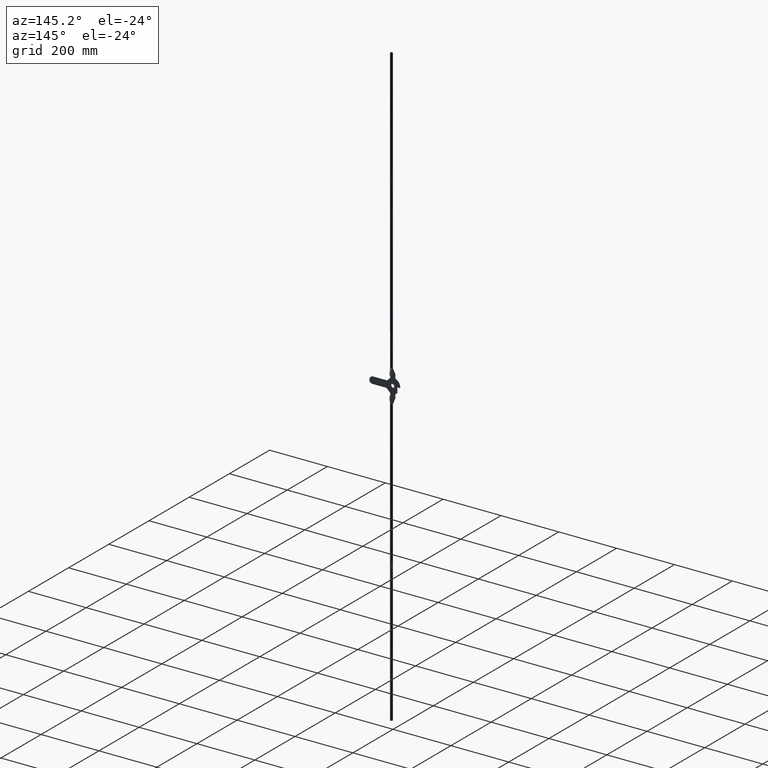
[diagram: clean part render]
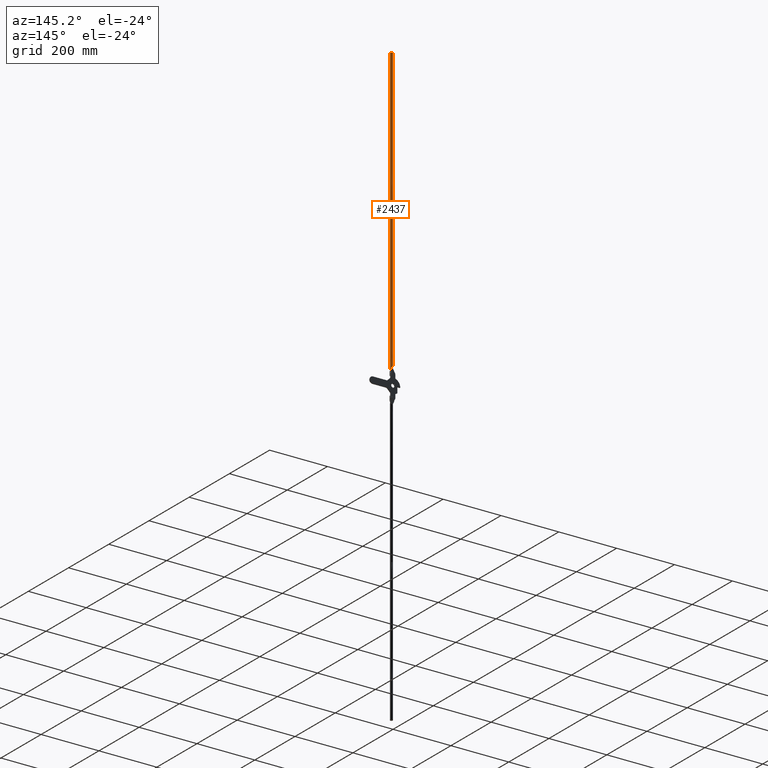
[diagram: same view with one face highlighted and labeled with its STEP entity id]
A machine part, auxiliary view. The second image highlights one B-rep face of the part: STEP entity #2437.
In plain terms, the highlighted face is a freeform B-spline surface patch.
Its self-contained STEP definition (entity closure, byte-faithful):
#2057=CARTESIAN_POINT('',(-5.637851E-014,-3.200000000000001,1037.003999999999900));
#2058=VERTEX_POINT('',#2057);
#2059=CARTESIAN_POINT('',(-4.486127999967517,-7.346934045952233,1037.003999999999900));
#2060=VERTEX_POINT('',#2059);
#2061=CARTESIAN_POINT('',(-5.637851E-014,-3.200000000000001,1037.003999999999900));
#2062=CARTESIAN_POINT('',(-4.159757190815893,-3.200000000000001,1037.004000000000100));
#2063=CARTESIAN_POINT('',(-4.486127999967549,-7.346934045952231,1037.003999999999900));
#2071=(BOUNDED_CURVE()B_SPLINE_CURVE(2,(#2061,#2062,#2063),.UNSPECIFIED.,.F.,.U.)B_SPLINE_CURVE_WITH_KNOTS((3,3),(0.0,0.236331299743477),.UNSPECIFIED.)CURVE()GEOMETRIC_REPRESENTATION_ITEM()RATIONAL_B_SPLINE_CURVE((1.0,0.723120659647065,0.969723354315934))REPRESENTATION_ITEM(''));
#2072=EDGE_CURVE('',#2058,#2060,#2071,.T.);
#2091=CARTESIAN_POINT('',(4.486127999967467,-8.053065954047764,1037.003999999999900));
#2092=VERTEX_POINT('',#2091);
#2106=CARTESIAN_POINT('',(4.486127999967437,-8.053065954047760,1037.004000000000100));
#2107=CARTESIAN_POINT('',(4.499999999999943,-7.876805493224742,1037.004000000000400));
#2108=CARTESIAN_POINT('',(4.499999999999943,-7.700000000000000,1037.003999999999900));
#2109=CARTESIAN_POINT('',(4.499999999999942,-3.200000000000000,1037.004000000000100));
#2110=CARTESIAN_POINT('',(-5.637851E-014,-3.200000000000001,1037.003999999999900));
#2118=(BOUNDED_CURVE()B_SPLINE_CURVE(2,(#2106,#2107,#2108,#2109,#2110),.UNSPECIFIED.,.F.,.U.)B_SPLINE_CURVE_WITH_KNOTS((3,2,3),(0.736331299743477,0.750000000000000,1.0),.UNSPECIFIED.)CURVE()GEOMETRIC_REPRESENTATION_ITEM()RATIONAL_B_SPLINE_CURVE((0.969723354315935,0.983986121539483,1.0,0.707106781186547,1.0))REPRESENTATION_ITEM(''));
#2119=EDGE_CURVE('',#2092,#2058,#2118,.T.);
#2306=CARTESIAN_POINT('',(-4.486128001799075,-7.346934069224758,1061.638195072248900));
#2307=CARTESIAN_POINT('',(-4.133062071023832,-2.860806067425679,1061.638195072248900));
#2308=CARTESIAN_POINT('',(0.353065930775247,-3.213871998200921,1061.638195072248900));
#2309=CARTESIAN_POINT('',(4.839193932574327,-3.566937928976165,1061.638195072248900));
#2310=CARTESIAN_POINT('',(4.486128001799083,-8.053065930775244,1061.638195072248900));
#2311=CARTESIAN_POINT('',(-4.486128001799016,-7.346934069224758,26.386147160999030));
#2312=CARTESIAN_POINT('',(-4.133062071023774,-2.860806067425679,26.386147160999023));
#2313=CARTESIAN_POINT('',(0.353065930775307,-3.213871998200921,26.386147160999030));
#2314=CARTESIAN_POINT('',(4.839193932574385,-3.566937928976165,26.386147160999023));
#2315=CARTESIAN_POINT('',(4.486128001799142,-8.053065930775244,26.386147160999030));
#2323=(BOUNDED_SURFACE()B_SPLINE_SURFACE(2,1,((#2306,#2311),(#2307,#2312),(#2308,#2313),(#2309,#2314),(#2310,#2315)),.UNSPECIFIED.,.F.,.F.,.U.)B_SPLINE_SURFACE_WITH_KNOTS((3,2,3),(2,2),(0.0,7.455844122715710,14.911688245431421),(0.0,1035.252047911250000),.UNSPECIFIED.)GEOMETRIC_REPRESENTATION_ITEM()RATIONAL_B_SPLINE_SURFACE(((1.0,1.0),(0.707106781186548,0.707106781186548),(1.0,1.0),(0.707106781186548,0.707106781186548),(1.0,1.0)))REPRESENTATION_ITEM('')SURFACE());
#2324=CARTESIAN_POINT('',(0.000002899509762,-3.199999999999905,59.999996617238700));
#2325=VERTEX_POINT('',#2324);
#2326=CARTESIAN_POINT('',(-4.486130706923814,-7.346934913627599,51.649709082939012));
#2327=VERTEX_POINT('',#2326);
#2328=CARTESIAN_POINT('',(0.000002899509762,-3.199999999999905,59.999996617238700));
#2329=CARTESIAN_POINT('',(-0.164815960589802,-3.200000013216943,59.807707969231771));
#2330=CARTESIAN_POINT('',(-0.325337227543509,-3.209016996732300,59.612332598107763));
#2331=CARTESIAN_POINT('',(-0.560079880868371,-3.234297299991398,59.314888189996232));
#2332=CARTESIAN_POINT('',(-0.637226619064104,-3.244683792576500,59.215124059827140));
#2333=CARTESIAN_POINT('',(-0.788964632619064,-3.269036885587310,59.014994871687989));
#2334=CARTESIAN_POINT('',(-0.863627057996848,-3.283010990245690,58.914540024010378));
#2335=CARTESIAN_POINT('',(-1.231191236424207,-3.361273628247231,58.410367655484443));
#2336=CARTESIAN_POINT('',(-1.506953689908851,-3.450399574723400,58.000947785929668));
#2337=CARTESIAN_POINT('',(-1.897191954539432,-3.617028467175684,57.378807838557847));
#2338=CARTESIAN_POINT('',(-2.023349714231950,-3.678127694386124,57.170094177034933));
#2339=CARTESIAN_POINT('',(-2.268291576613588,-3.811008765876255,56.750212928532761));
#2340=CARTESIAN_POINT('',(-2.387262155716758,-3.882937729286074,56.538677546418043));
#2341=CARTESIAN_POINT('',(-2.730980516133971,-4.112838535177032,55.905844308539891));
#2342=CARTESIAN_POINT('',(-2.943429342521926,-4.284975190822180,55.484923260436489));
#2343=CARTESIAN_POINT('',(-3.239910341616559,-4.573978754430391,54.857521752292342));
#2344=CARTESIAN_POINT('',(-3.335019384402019,-4.675507622729429,54.649070980599873));
#2345=CARTESIAN_POINT('',(-3.518034895529396,-4.890491503412374,54.234370489321357));
#2346=CARTESIAN_POINT('',(-3.605944031781130,-5.003918168709668,54.028108682243733));
#2347=CARTESIAN_POINT('',(-3.732427871180693,-5.185166375696817,53.721396410918693));
#2348=CARTESIAN_POINT('',(-3.773690712253369,-5.247446678780715,53.619610936291707));
#2349=CARTESIAN_POINT('',(-3.854392617947513,-5.376335532972465,53.417213655917578));
#2350=CARTESIAN_POINT('',(-3.893737733924563,-5.442801848784143,53.316832879316543));
#2351=CARTESIAN_POINT('',(-4.008250062669513,-5.648525793191724,53.019902368486022));
#2352=CARTESIAN_POINT('',(-4.080111827518340,-5.794157442254026,52.826974574004829));
#2353=CARTESIAN_POINT('',(-4.180273643747167,-6.031862876484928,52.549939572123428));
#2354=CARTESIAN_POINT('',(-4.212380910185305,-6.114348242754790,52.459682978020552));
#2355=CARTESIAN_POINT('',(-4.258358294393290,-6.244500887516280,52.328555289087518));
#2356=CARTESIAN_POINT('',(-4.273314873903866,-6.288966016902430,52.285569907076997));
#2357=CARTESIAN_POINT('',(-4.302177305868668,-6.379580662426350,52.202035933708629));
#2358=CARTESIAN_POINT('',(-4.316115432004726,-6.425817758324408,52.161395621837087));
#2359=CARTESIAN_POINT('',(-4.356327511483803,-6.567721546189430,52.043373932534131));
#2360=CARTESIAN_POINT('',(-4.381019563247277,-6.666527123012138,51.969824117987457));
#2361=CARTESIAN_POINT('',(-4.414112715554019,-6.823392859046543,51.870208435567910));
#2362=CARTESIAN_POINT('',(-4.424482047597810,-6.877135564502543,51.838802240818183));
#2363=CARTESIAN_POINT('',(-4.443690149401558,-6.988125670156746,51.780347538823037));
#2364=CARTESIAN_POINT('',(-4.452576619716051,-7.045758535051973,51.753152015449857));
#2365=CARTESIAN_POINT('',(-4.470954555401410,-7.183379954284874,51.696695202227289));
#2366=CARTESIAN_POINT('',(-4.479618472045545,-7.264140604187964,51.669904024331153));
#2367=CARTESIAN_POINT('',(-4.486130706923814,-7.346934913627599,51.649709082939012));
#2368=B_SPLINE_CURVE_WITH_KNOTS('',3,(#2328,#2329,#2330,#2331,#2332,#2333,#2334,#2335,#2336,#2337,#2338,#2339,#2340,#2341,#2342,#2343,#2344,#2345,#2346,#2347,#2348,#2349,#2350,#2351,#2352,#2353,#2354,#2355,#2356,#2357,#2358,#2359,#2360,#2361,#2362,#2363,#2364,#2365,#2366,#2367),.UNSPECIFIED.,.F.,.U.,(4,2,2,2,2,2,2,2,2,2,2,2,2,2,2,2,2,2,2,4),(0.0,0.062500000000002,0.093750000000002,0.125000000000002,0.250000000000002,0.312500000000001,0.375000000000000,0.499999999999999,0.562499999999999,0.624999999999999,0.656249999999999,0.687499999999999,0.749999999999997,0.781249999999996,0.796874999999997,0.812499999999997,0.843749999999998,0.859374999999999,0.874999999999999,0.896070064359491),.UNSPECIFIED.);
#2369=EDGE_CURVE('',#2325,#2327,#2368,.T.);
#2370=ORIENTED_EDGE('',*,*,#2369,.T.);
#2371=CARTESIAN_POINT('',(-4.486127999967517,-7.346934045952233,1037.003999999999900));
#2372=CARTESIAN_POINT('',(-4.486130706923814,-7.346934913627599,51.649709082939012));
#2373=QUASI_UNIFORM_CURVE('',1,(#2371,#2372),.UNSPECIFIED.,.F.,.U.);
#2374=EDGE_CURVE('',#2060,#2327,#2373,.T.);
#2375=ORIENTED_EDGE('',*,*,#2374,.F.);
#2376=ORIENTED_EDGE('',*,*,#2072,.F.);
#2377=ORIENTED_EDGE('',*,*,#2119,.F.);
#2378=CARTESIAN_POINT('',(4.486127944394353,-8.053065909465119,51.649724650867093));
#2379=VERTEX_POINT('',#2378);
#2380=CARTESIAN_POINT('',(4.486127999967467,-8.053065954047764,1037.003999999999900));
#2381=CARTESIAN_POINT('',(4.486127944394353,-8.053065909465119,51.649724650867093));
#2382=QUASI_UNIFORM_CURVE('',1,(#2380,#2381),.UNSPECIFIED.,.F.,.U.);
#2383=EDGE_CURVE('',#2092,#2379,#2382,.T.);
#2384=ORIENTED_EDGE('',*,*,#2383,.T.);
#2385=CARTESIAN_POINT('',(4.486127944394353,-8.053065909465119,51.649724650867093));
#2386=CARTESIAN_POINT('',(4.486473342234404,-8.048678048359307,51.648653662687963));
#2387=CARTESIAN_POINT('',(4.486812317342972,-8.044289309123396,51.647602387556717));
#2388=CARTESIAN_POINT('',(4.491822300760320,-7.978150833330669,51.632061990529003));
#2389=CARTESIAN_POINT('',(4.498670754555344,-7.853913947771781,51.610749359147619));
#2390=CARTESIAN_POINT('',(4.500357041746575,-7.728143562887461,51.605489236500468));
#2391=CARTESIAN_POINT('',(4.499368666905700,-7.601576638990760,51.608569358155670));
#2392=CARTESIAN_POINT('',(4.497508537352604,-7.537472537495010,51.614368733258189));
#2393=CARTESIAN_POINT('',(4.491166819790109,-7.411176852530153,51.634091770821527));
#2394=CARTESIAN_POINT('',(4.486702922943778,-7.348850426957506,51.647959641545661));
#2395=CARTESIAN_POINT('',(4.475385817199006,-7.225942069362970,51.682986134224677));
#2396=CARTESIAN_POINT('',(4.468628960913380,-7.166349340400247,51.703845067371482));
#2397=CARTESIAN_POINT('',(4.445536125221146,-6.992244160130304,51.774799494210427));
#2398=CARTESIAN_POINT('',(4.426403544533678,-6.882359763770237,51.833191538965508));
#2399=CARTESIAN_POINT('',(4.393291296059751,-6.724352571273446,51.932908162616052));
#2400=CARTESIAN_POINT('',(4.381476520961175,-6.672696798875535,51.968293723028758));
#2401=CARTESIAN_POINT('',(4.356645265249386,-6.572023761570819,52.042162558466792));
#2402=CARTESIAN_POINT('',(4.343699741990935,-6.523265532684505,52.080435863689409));
#2403=CARTESIAN_POINT('',(4.303460705029659,-6.380928192067694,52.198567252612143));
#2404=CARTESIAN_POINT('',(4.274774944323103,-6.291246346312582,52.281701658302723));
#2405=CARTESIAN_POINT('',(4.214303018397660,-6.119513450896353,52.454252339938037));
#2406=CARTESIAN_POINT('',(4.182510710630685,-6.037485887384928,52.543689159192027));
#2407=CARTESIAN_POINT('',(4.116158020025091,-5.879397859298256,52.727352884183389));
#2408=CARTESIAN_POINT('',(4.081594898720351,-5.803348151295045,52.821589225278487));
#2409=CARTESIAN_POINT('',(4.009892202025808,-5.656114078021823,53.013853965565893));
#2410=CARTESIAN_POINT('',(3.972774009372344,-5.584994821642748,53.111821028502909));
#2411=CARTESIAN_POINT('',(3.858328059853887,-5.378788144316064,53.408812156726832));
#2412=CARTESIAN_POINT('',(3.777660342677404,-5.250306534011278,53.611542442580017));
#2413=CARTESIAN_POINT('',(3.609298439441665,-5.008405587283510,54.020155581980532));
#2414=CARTESIAN_POINT('',(3.521446721392739,-4.894753139742476,54.226471393622496));
#2415=CARTESIAN_POINT('',(3.338366371521492,-4.679187709229975,54.641666617557483));
#2416=CARTESIAN_POINT('',(3.243135046142621,-4.577301881334472,54.850558484472280));
#2417=CARTESIAN_POINT('',(3.045033401285013,-4.383836550542481,55.270064974571710));
#2418=CARTESIAN_POINT('',(2.942162490196357,-4.292268661893740,55.480685179062021));
#2419=CARTESIAN_POINT('',(2.781802018405618,-4.162159433883171,55.797514690609233));
#2420=CARTESIAN_POINT('',(2.727291538469447,-4.119968966743373,55.903364182079990));
#2421=CARTESIAN_POINT('',(2.616481167684025,-4.038201586432083,56.114751162452663));
#2422=CARTESIAN_POINT('',(2.560173745367103,-3.998614640613041,56.220307299770873));
#2423=CARTESIAN_POINT('',(2.274004167321127,-3.807084075647651,56.747304889297517));
#2424=CARTESIAN_POINT('',(2.030326283704954,-3.674071305974619,57.166359100395219));
#2425=CARTESIAN_POINT('',(1.639453864878611,-3.506877927919548,57.789817685028162));
#2426=CARTESIAN_POINT('',(1.504921667090466,-3.456588342492303,57.996790792027603));
#2427=CARTESIAN_POINT('',(1.226592642754502,-3.367933265011156,58.408899772367789));
#2428=CARTESIAN_POINT('',(1.083169086375178,-3.329697177470577,58.613470119905472));
#2429=CARTESIAN_POINT('',(0.640055362817391,-3.235524979291379,59.221091186832084));
#2430=CARTESIAN_POINT('',(0.329021398448044,-3.200000212245296,59.616141514563651));
#2431=CARTESIAN_POINT('',(0.000002899509762,-3.199999999999905,59.999996617238700));
#2432=B_SPLINE_CURVE_WITH_KNOTS('',3,(#2385,#2386,#2387,#2388,#2389,#2390,#2391,#2392,#2393,#2394,#2395,#2396,#2397,#2398,#2399,#2400,#2401,#2402,#2403,#2404,#2405,#2406,#2407,#2408,#2409,#2410,#2411,#2412,#2413,#2414,#2415,#2416,#2417,#2418,#2419,#2420,#2421,#2422,#2423,#2424,#2425,#2426,#2427,#2428,#2429,#2430,#2431),.UNSPECIFIED.,.F.,.U.,(4,2,1,2,2,2,2,2,2,2,2,2,2,2,2,2,2,2,2,2,2,2,2,4),(0.045764548459738,0.046874999999997,0.062499999999997,0.078124999999996,0.093749999999996,0.109374999999996,0.124999999999995,0.156249999999994,0.171874999999994,0.187499999999994,0.218749999999994,0.249999999999995,0.281249999999996,0.312499999999997,0.374999999999998,0.437500000000000,0.500000000000001,0.562500000000003,0.593750000000003,0.625000000000003,0.750000000000002,0.812500000000001,0.875000000000001,1.0),.UNSPECIFIED.);
#2433=EDGE_CURVE('',#2379,#2325,#2432,.T.);
#2434=ORIENTED_EDGE('',*,*,#2433,.T.);
#2435=EDGE_LOOP('',(#2370,#2375,#2376,#2377,#2384,#2434));
#2436=FACE_OUTER_BOUND('',#2435,.T.);
#2437=ADVANCED_FACE('',(#2436),#2323,.T.);